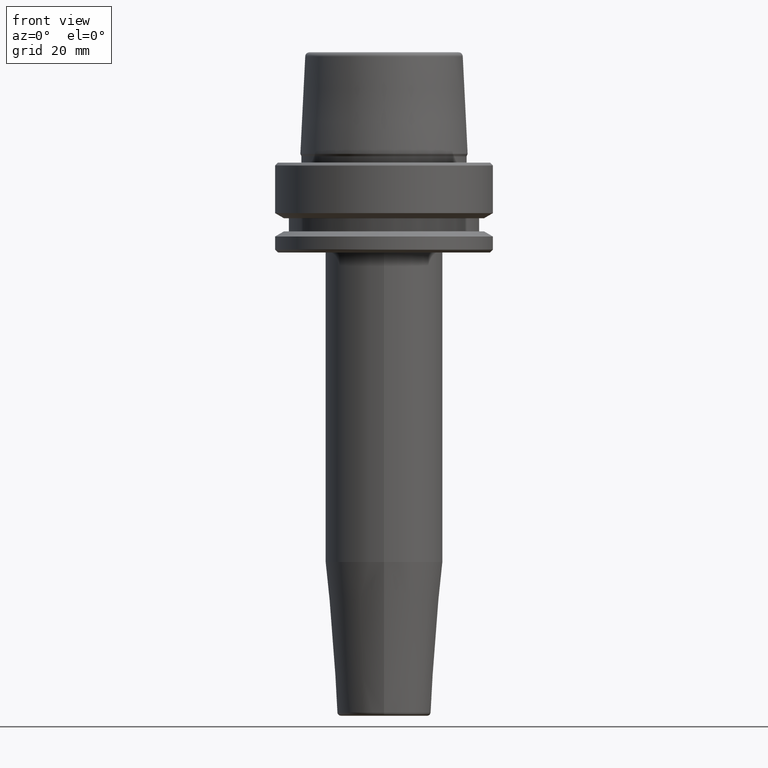
[diagram: clean part render]
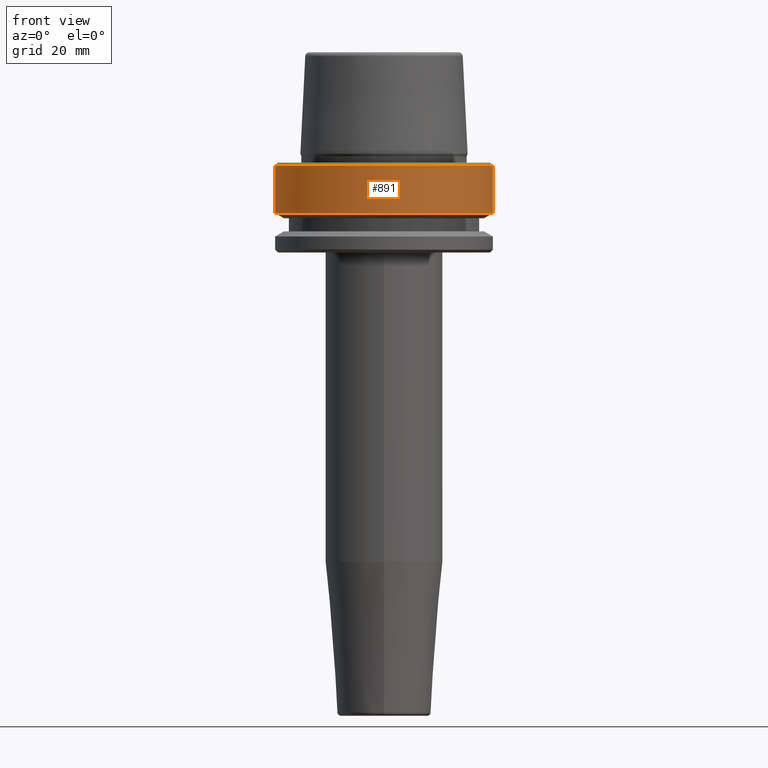
[diagram: same view with one face highlighted and labeled with its STEP entity id]
A machine part, front view. The second image highlights one B-rep face of the part: STEP entity #891.
In plain terms, the highlighted cylindrical surface (partial cylindrical patch) has radius 31.5 mm, axis along (-0, -0, 1).
Its self-contained STEP definition (entity closure, byte-faithful):
#18 = FACE_OUTER_BOUND ( 'NONE', #861, .T. ) ;
#22 = DIRECTION ( 'NONE',  ( -0.0000000000000000000, -0.0000000000000000000, 1.000000000000000000 ) ) ;
#36 = EDGE_CURVE ( 'NONE', #1109, #1193, #1122, .T. ) ;
#215 = CARTESIAN_POINT ( 'NONE',  ( 0.0000000000000000000, 0.0000000000000000000, 78.96908074195309300 ) ) ;
#218 = AXIS2_PLACEMENT_3D ( 'NONE', #491, #680, #286 ) ;
#237 = ORIENTED_EDGE ( 'NONE', *, *, #36, .F. ) ;
#241 = CARTESIAN_POINT ( 'NONE',  ( -31.50000000000000000, 3.857637417314162700E-015, -0.9656854249492363700 ) ) ;
#270 = DIRECTION ( 'NONE',  ( -0.0000000000000000000, -0.0000000000000000000, 1.000000000000000000 ) ) ;
#271 = VECTOR ( 'NONE', #270, 1000.000000000000000 ) ;
#286 = DIRECTION ( 'NONE',  ( 1.000000000000000000, 0.0000000000000000000, 0.0000000000000000000 ) ) ;
#313 = VECTOR ( 'NONE', #471, 1000.000000000000000 ) ;
#359 = DIRECTION ( 'NONE',  ( -0.0000000000000000000, -0.0000000000000000000, 1.000000000000000000 ) ) ;
#367 = DIRECTION ( 'NONE',  ( 1.000000000000000000, 0.0000000000000000000, 0.0000000000000000000 ) ) ;
#406 = DIRECTION ( 'NONE',  ( 1.000000000000000000, 0.0000000000000000000, 0.0000000000000000000 ) ) ;
#460 = CARTESIAN_POINT ( 'NONE',  ( 0.0000000000000000000, 0.0000000000000000000, -14.62250092524070100 ) ) ;
#471 = DIRECTION ( 'NONE',  ( -0.0000000000000000000, -0.0000000000000000000, 1.000000000000000000 ) ) ;
#485 = CARTESIAN_POINT ( 'NONE',  ( -31.50000000000000000, 3.857637417314162700E-015, -14.62250092524070100 ) ) ;
#491 = CARTESIAN_POINT ( 'NONE',  ( 0.0000000000000000000, 0.0000000000000000000, -0.9656854249492363700 ) ) ;
#492 = LINE ( 'NONE', #1144, #313 ) ;
#504 = CIRCLE ( 'NONE', #218, 31.50000000000000000 ) ;
#543 = AXIS2_PLACEMENT_3D ( 'NONE', #460, #359, #367 ) ;
#548 = ORIENTED_EDGE ( 'NONE', *, *, #1102, .T. ) ;
#605 = EDGE_CURVE ( 'NONE', #1175, #1179, #492, .T. ) ;
#612 = CYLINDRICAL_SURFACE ( 'NONE', #703, 31.50000000000000000 ) ;
#620 = ORIENTED_EDGE ( 'NONE', *, *, #1027, .F. ) ;
#680 = DIRECTION ( 'NONE',  ( -0.0000000000000000000, -0.0000000000000000000, 1.000000000000000000 ) ) ;
#703 = AXIS2_PLACEMENT_3D ( 'NONE', #215, #22, #406 ) ;
#849 = CARTESIAN_POINT ( 'NONE',  ( -31.50000000000000000, 3.857637417314162700E-015, 78.96908074195309300 ) ) ;
#861 = EDGE_LOOP ( 'NONE', ( #237, #548, #1083, #620 ) ) ;
#891 = ADVANCED_FACE ( 'NONE', ( #18 ), #612, .T. ) ;
#917 = CARTESIAN_POINT ( 'NONE',  ( 31.50000000000000000, 0.0000000000000000000, -0.9656854249492363700 ) ) ;
#1027 = EDGE_CURVE ( 'NONE', #1193, #1179, #504, .T. ) ;
#1083 = ORIENTED_EDGE ( 'NONE', *, *, #605, .T. ) ;
#1099 = CARTESIAN_POINT ( 'NONE',  ( 31.50000000000000000, 0.0000000000000000000, -14.62250092524070100 ) ) ;
#1102 = EDGE_CURVE ( 'NONE', #1109, #1175, #1173, .T. ) ;
#1109 = VERTEX_POINT ( 'NONE', #485 ) ;
#1122 = LINE ( 'NONE', #849, #271 ) ;
#1144 = CARTESIAN_POINT ( 'NONE',  ( 31.50000000000000000, 0.0000000000000000000, 78.96908074195309300 ) ) ;
#1173 = CIRCLE ( 'NONE', #543, 31.50000000000000000 ) ;
#1175 = VERTEX_POINT ( 'NONE', #1099 ) ;
#1179 = VERTEX_POINT ( 'NONE', #917 ) ;
#1193 = VERTEX_POINT ( 'NONE', #241 ) ;